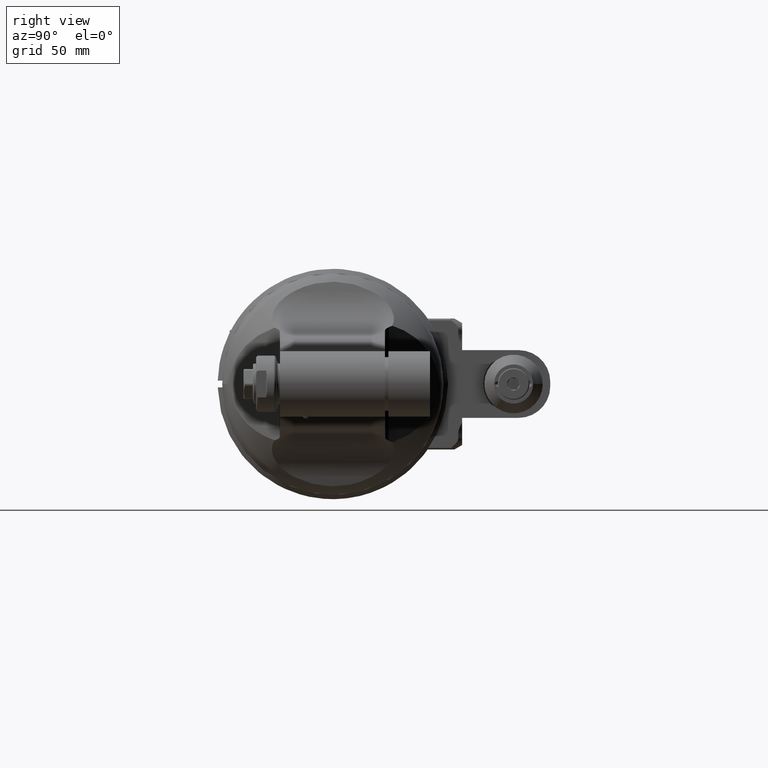
[diagram: clean part render]
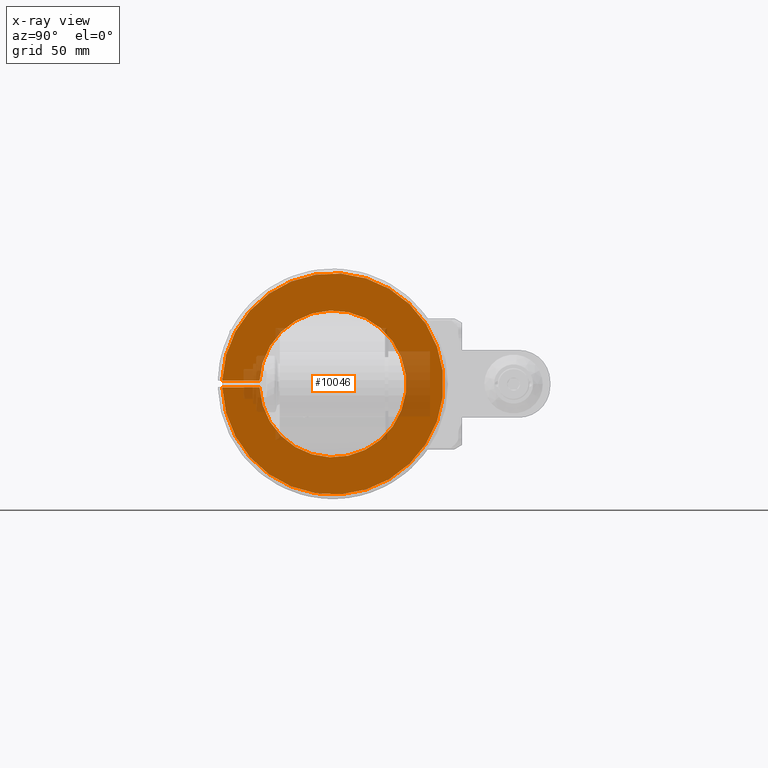
[diagram: x-ray — body ghosted, one internal face saturated and labeled with its STEP entity id]
A machine part, right view, then the same camera in x-ray: the body is ghosted and one INTERNAL B-rep face — a face not visible from any outside direction — is saturated and labeled: STEP entity #10046.
In plain terms, the highlighted planar face has unit normal (1, 0, 0).
Its self-contained STEP definition (entity closure, byte-faithful):
#351=PLANE('',#10735);
#725=FACE_OUTER_BOUND('',#1282,.T.);
#1282=EDGE_LOOP('',(#6860,#6861,#6862,#6863));
#1939=CIRCLE('',#10731,49.);
#1942=CIRCLE('',#10736,32.5);
#2505=LINE('',#14771,#3340);
#2510=LINE('',#14805,#3345);
#3340=VECTOR('',#11787,16.51166927349);
#3345=VECTOR('',#11798,16.51166927349);
#4189=VERTEX_POINT('',#14760);
#4190=VERTEX_POINT('',#14764);
#4191=VERTEX_POINT('',#14770);
#4199=VERTEX_POINT('',#14804);
#5294=EDGE_CURVE('',#4190,#4189,#1939,.T.);
#5296=EDGE_CURVE('',#4191,#4190,#2505,.T.);
#5305=EDGE_CURVE('',#4189,#4199,#2510,.T.);
#5306=EDGE_CURVE('',#4199,#4191,#1942,.T.);
#6860=ORIENTED_EDGE('',*,*,#5294,.T.);
#6861=ORIENTED_EDGE('',*,*,#5305,.T.);
#6862=ORIENTED_EDGE('',*,*,#5306,.T.);
#6863=ORIENTED_EDGE('',*,*,#5296,.T.);
#10046=ADVANCED_FACE('',(#725),#351,.T.);
#10731=AXIS2_PLACEMENT_3D('',#14765,#11783,#11784);
#10735=AXIS2_PLACEMENT_3D('',#14803,#11796,#11797);
#10736=AXIS2_PLACEMENT_3D('',#14806,#11799,#11800);
#11783=DIRECTION('center_axis',(1.,0.,0.));
#11784=DIRECTION('ref_axis',(0.,1.,0.));
#11787=DIRECTION('',(0.,-1.,0.));
#11796=DIRECTION('center_axis',(1.,0.,0.));
#11797=DIRECTION('ref_axis',(0.,-1.,0.));
#11798=DIRECTION('',(0.,1.,0.));
#11799=DIRECTION('center_axis',(-1.,0.,0.));
#11800=DIRECTION('ref_axis',(0.,-0.998934343430642,0.0461538461538519));
#14760=CARTESIAN_POINT('',(-12.,-48.97703543499,1.5));
#14764=CARTESIAN_POINT('',(-12.,-48.97703543499,-1.5));
#14765=CARTESIAN_POINT('Origin',(-12.,0.,0.));
#14770=CARTESIAN_POINT('',(-12.,-32.4653661615,-1.5));
#14771=CARTESIAN_POINT('',(-12.,-32.4653661615,-1.5));
#14803=CARTESIAN_POINT('Origin',(-12.,-49.13074005203,0.));
#14804=CARTESIAN_POINT('',(-12.,-32.4653661615,1.5));
#14805=CARTESIAN_POINT('',(-12.,-48.97703543499,1.5));
#14806=CARTESIAN_POINT('Origin',(-12.,0.,0.));